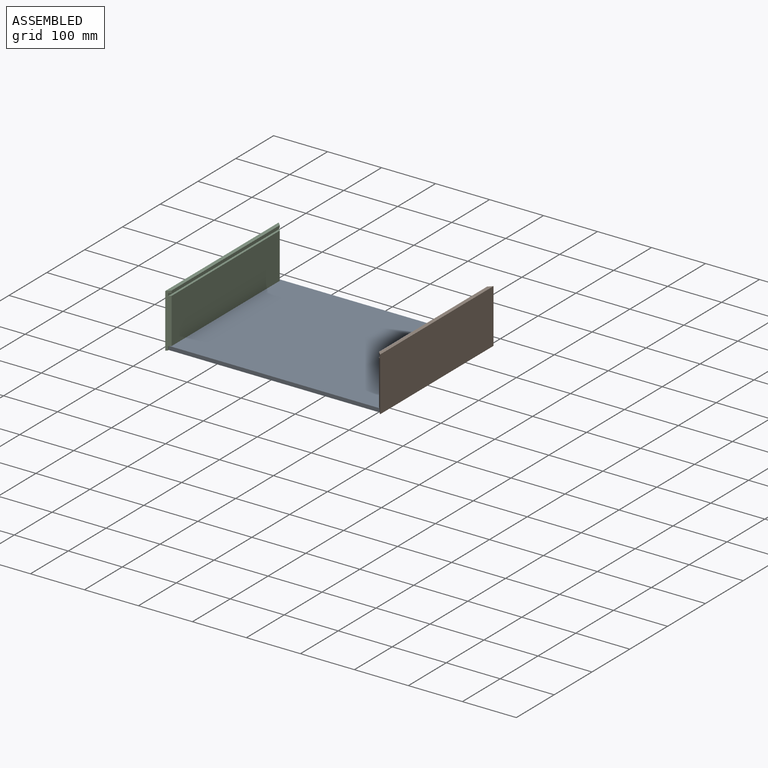
[diagram: assembled view]
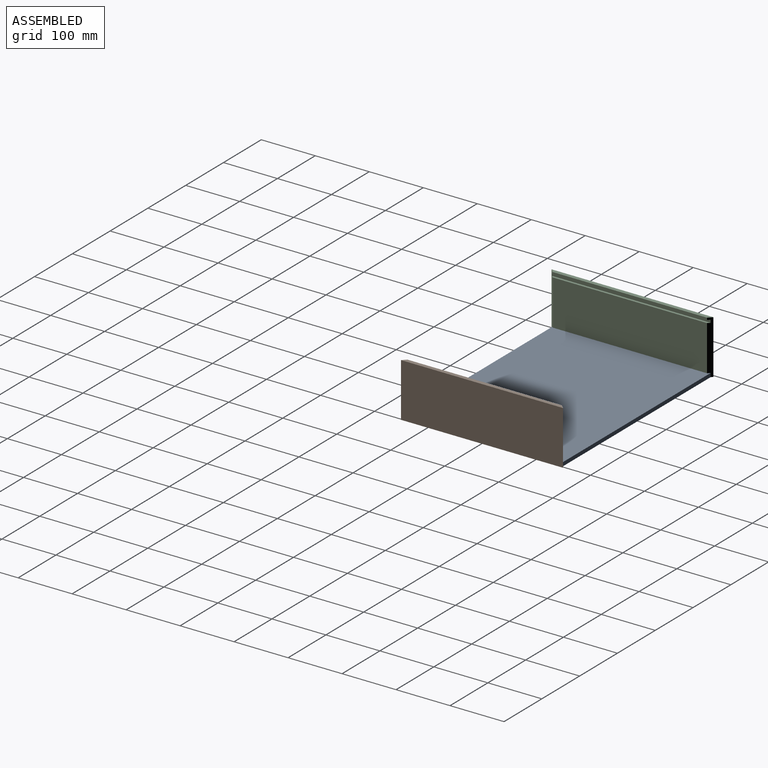
[diagram: assembled view, second angle]
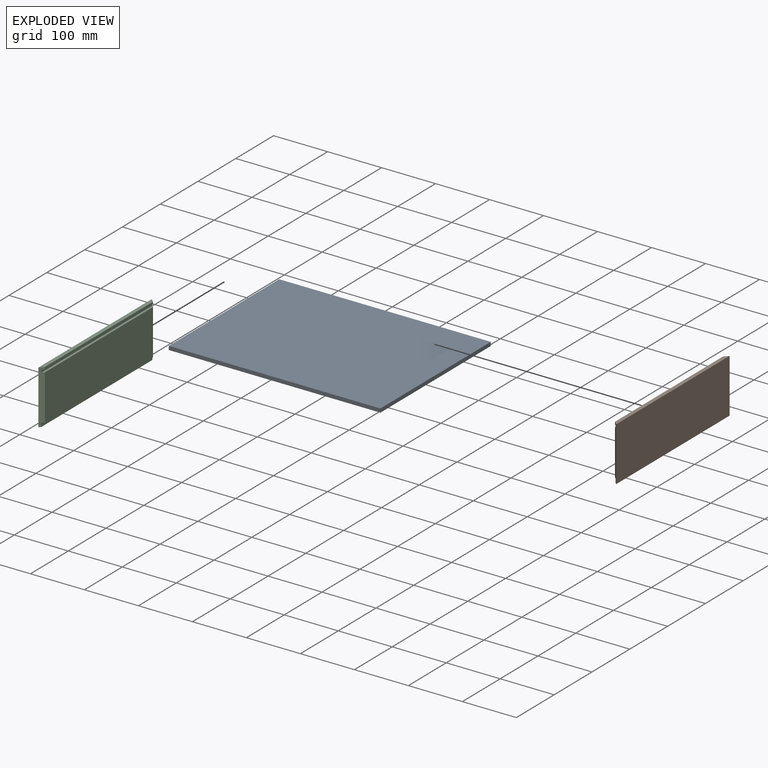
[diagram: exploded view]
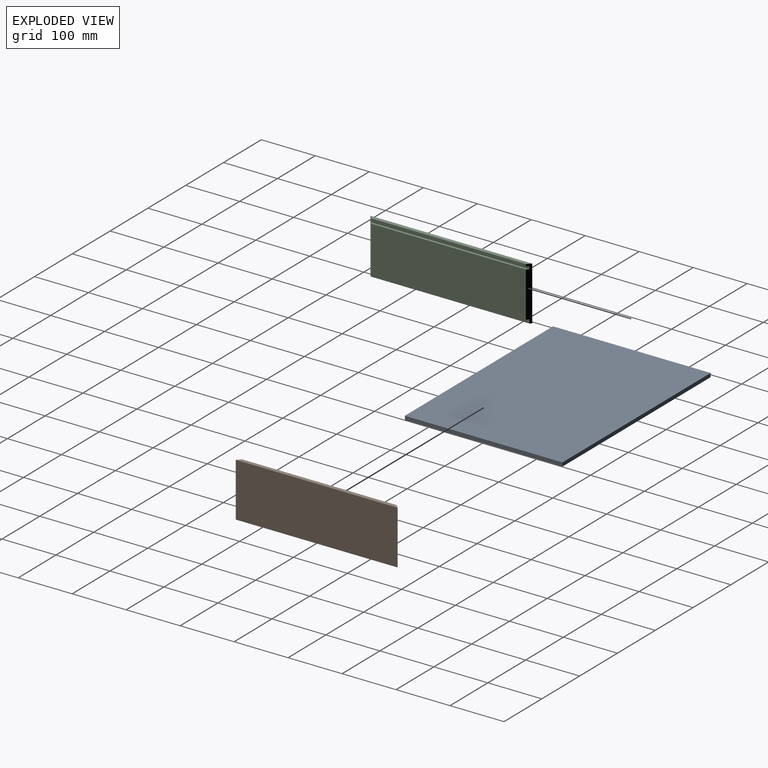
[diagram: exploded view, second angle]
ASSEMBLY  parts=3 mates=2
PART A: 6 faces, bbox 392x292x7 mm
  f0: plane 292x7mm, normal (-1,0,0), area 2044mm2, adj f1,f3,f4,f5
  f1: plane 392x7mm, normal (0,-1,0), area 2744mm2, adj f0,f2,f4,f5
  f2: plane 292x7mm, normal (1,0,0), area 2044mm2, adj f1,f3,f4,f5
  f3: plane 392x7mm, normal (0,1,0), area 2744mm2, adj f0,f2,f4,f5
  f4: plane 392x292mm, normal (0,0,1), area 114464mm2, adj f0,f1,f2,f3
  f5: plane 392x292mm, normal (0,0,-1), area 114464mm2, adj f0,f1,f2,f3
PART B: 12 faces, bbox 7x300x100 mm
  f0: plane 286x84mm, normal (1,0,0), area 24024mm2, adj f5,f8,f10,f11
  f1: plane 300x3mm, normal (0,0,-1), area 891mm2, adj f4,f9,f10,f11
  f2: plane 300x7mm, normal (0,0,1), area 2051mm2, adj f3,f4,f10,f11
  f3: plane 286x4mm, normal (1,0,0), area 1144mm2, adj f2,f6,f10,f11
  f4: plane 300x100mm, normal (-1,0,0), area 30000mm2, adj f1,f2,f10,f11
  f5: plane 294x4mm, normal (0,0,1), area 1160mm2, adj f0,f7,f10,f11
  f6: plane 294x4mm, normal (0,0,-1), area 1160mm2, adj f3,f7,f10,f11
  f7: plane 294x5mm, normal (1,0,0), area 1470mm2, adj f5,f6,f10,f11
  f8: plane 294x4mm, normal (0,0,-1), area 1160mm2, adj f0,f9,f10,f11
  f9: plane 294x7mm, normal (1,0,0), area 2058mm2, adj f1,f8,f10,f11
  f10: plane 100x7mm, normal (0.71,0.71,0), area 922.1mm2, adj f0,f1,f2,f3,f4,f5,f6,f7
  f11: plane 100x7mm, normal (0.71,-0.71,0), area 922.1mm2, adj f0,f1,f2,f3,f4,f5,f6,f7
PART C: same geometry as B
PLACE A t=(-334.11,-67.39,31.79)mm
PLACE B rot(axis=(0,0,-1),180deg) t=(115.58,361.04,-2.06)mm
PLACE C t=(-282.42,-141.15,-2.06)mm
MATE fastened C.f8 <-> A.f4  axis (0,0,1) through (-279.42,256.95,38.79)mm
MATE fastened B.f9 <-> A.f2  axis (-1,0,0) through (112.58,256.95,35.29)mm
